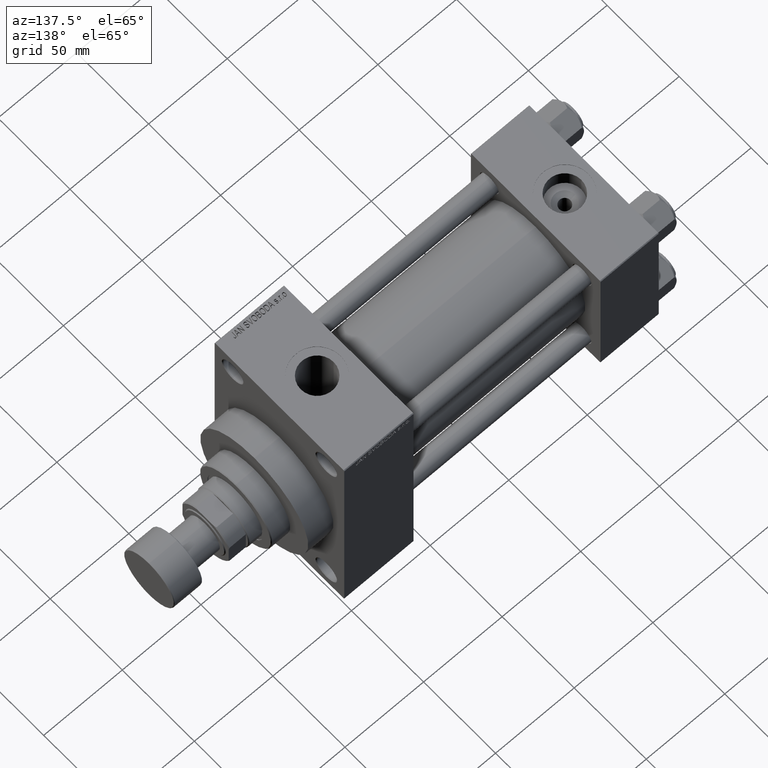
[diagram: clean part render]
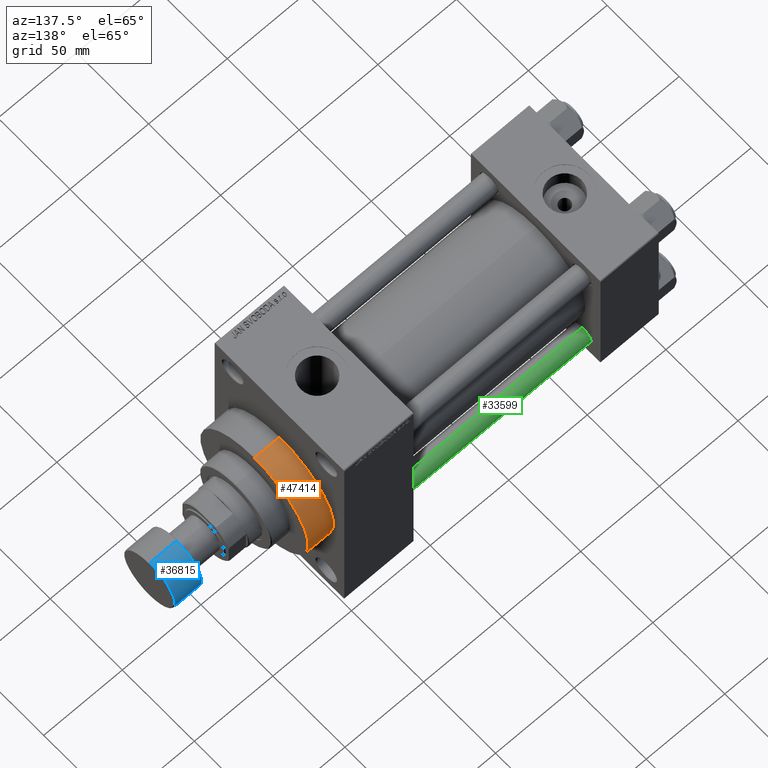
[diagram: same view with three faces highlighted in distinct colors, each labeled with its STEP entity id]
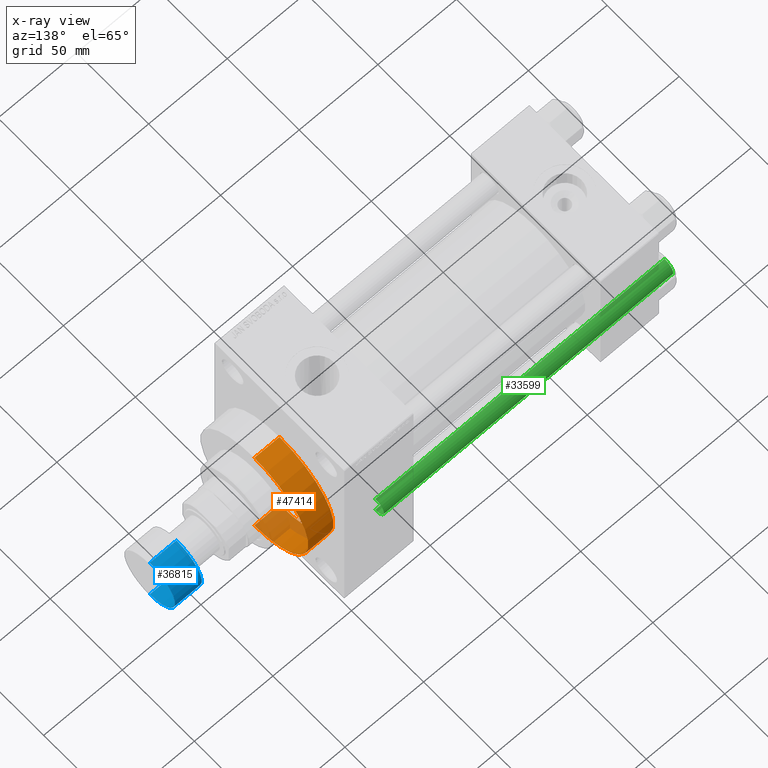
[diagram: x-ray of the same camera — body ghosted, the three highlighted faces saturated]
A machine part, auxiliary view with three faces highlighted in distinct colors.
The next image is the same camera in x-ray (body ghosted, the three faces saturated) — at least one of them is partly hidden behind the body in this view.
Their STEP definitions:

[orange] entity #47414 — the highlighted cylindrical surface (partial cylindrical patch) has radius 37.5 mm, axis along (-1, -0, -0).
#252 = AXIS2_PLACEMENT_3D ( 'NONE', #37824, #4315, #11303 ) ;
#1398 = CARTESIAN_POINT ( 'NONE',  ( 216.0000000000000284, 4.592425496802575156E-15, -37.50000000000000711 ) ) ;
#2945 = ORIENTED_EDGE ( 'NONE', *, *, #4268, .T. ) ;
#4268 = EDGE_CURVE ( 'NONE', #22805, #17750, #21026, .T. ) ;
#4315 = DIRECTION ( 'NONE',  ( 1.000000000000000000, 0.000000000000000000, 0.000000000000000000 ) ) ;
#7469 = ORIENTED_EDGE ( 'NONE', *, *, #20431, .F. ) ;
#8752 = VERTEX_POINT ( 'NONE', #31123 ) ;
#9662 = CARTESIAN_POINT ( 'NONE',  ( 216.0000000000000284, 0.000000000000000000, 0.000000000000000000 ) ) ;
#10788 = CARTESIAN_POINT ( 'NONE',  ( 216.0000000000000284, 0.000000000000000000, 37.50000000000000711 ) ) ;
#11303 = DIRECTION ( 'NONE',  ( 0.000000000000000000, 0.000000000000000000, -1.000000000000000000 ) ) ;
#13040 = CYLINDRICAL_SURFACE ( 'NONE', #19787, 37.50000000000000711 ) ;
#14888 = LINE ( 'NONE', #36860, #23101 ) ;
#17750 = VERTEX_POINT ( 'NONE', #26989 ) ;
#18622 = DIRECTION ( 'NONE',  ( 0.000000000000000000, 0.000000000000000000, -1.000000000000000000 ) ) ;
#19787 = AXIS2_PLACEMENT_3D ( 'NONE', #9662, #42702, #46555 ) ;
#20431 = EDGE_CURVE ( 'NONE', #8752, #17750, #32503, .T. ) ;
#20750 = EDGE_CURVE ( 'NONE', #24693, #8752, #22901, .T. ) ;
#21026 = CIRCLE ( 'NONE', #252, 37.50000000000000711 ) ;
#22805 = VERTEX_POINT ( 'NONE', #32153 ) ;
#22901 = CIRCLE ( 'NONE', #36028, 37.50000000000000711 ) ;
#23101 = VECTOR ( 'NONE', #44305, 1000.000000000000000 ) ;
#24693 = VERTEX_POINT ( 'NONE', #1398 ) ;
#26104 = DIRECTION ( 'NONE',  ( 1.000000000000000000, 0.000000000000000000, 0.000000000000000000 ) ) ;
#26897 = EDGE_CURVE ( 'NONE', #24693, #22805, #14888, .T. ) ;
#26989 = CARTESIAN_POINT ( 'NONE',  ( 200.0000000000000000, 0.000000000000000000, 37.50000000000000711 ) ) ;
#29963 = ORIENTED_EDGE ( 'NONE', *, *, #20750, .F. ) ;
#31123 = CARTESIAN_POINT ( 'NONE',  ( 216.0000000000000284, 0.000000000000000000, 37.50000000000000711 ) ) ;
#32153 = CARTESIAN_POINT ( 'NONE',  ( 200.0000000000000000, 4.592425496802575156E-15, -37.50000000000000711 ) ) ;
#32391 = CARTESIAN_POINT ( 'NONE',  ( 216.0000000000000284, 0.000000000000000000, 0.000000000000000000 ) ) ;
#32503 = LINE ( 'NONE', #10788, #45987 ) ;
#32748 = DIRECTION ( 'NONE',  ( -1.000000000000000000, -0.000000000000000000, -0.000000000000000000 ) ) ;
#35698 = ORIENTED_EDGE ( 'NONE', *, *, #26897, .T. ) ;
#36028 = AXIS2_PLACEMENT_3D ( 'NONE', #32391, #26104, #18622 ) ;
#36860 = CARTESIAN_POINT ( 'NONE',  ( 216.0000000000000284, 4.592425496802575156E-15, -37.50000000000000711 ) ) ;
#37824 = CARTESIAN_POINT ( 'NONE',  ( 200.0000000000000000, 0.000000000000000000, 0.000000000000000000 ) ) ;
#38630 = FACE_OUTER_BOUND ( 'NONE', #44712, .T. ) ;
#42702 = DIRECTION ( 'NONE',  ( -1.000000000000000000, -0.000000000000000000, -0.000000000000000000 ) ) ;
#44305 = DIRECTION ( 'NONE',  ( -1.000000000000000000, -0.000000000000000000, -0.000000000000000000 ) ) ;
#44712 = EDGE_LOOP ( 'NONE', ( #29963, #35698, #2945, #7469 ) ) ;
#45987 = VECTOR ( 'NONE', #32748, 1000.000000000000000 ) ;
#46555 = DIRECTION ( 'NONE',  ( 0.000000000000000000, 0.000000000000000000, 1.000000000000000000 ) ) ;
#47414 = ADVANCED_FACE ( 'NONE', ( #38630 ), #13040, .T. ) ;

[blue] entity #36815 — the highlighted cylindrical surface (partial cylindrical patch) has radius 17.5 mm, axis along (1, 0, 0).
#15 = DIRECTION ( 'NONE',  ( 1.000000000000000000, 0.000000000000000000, 0.000000000000000000 ) ) ;
#780 = DIRECTION ( 'NONE',  ( 0.000000000000000000, 0.000000000000000000, 1.000000000000000000 ) ) ;
#2944 = DIRECTION ( 'NONE',  ( 1.000000000000000000, 0.000000000000000000, 0.000000000000000000 ) ) ;
#5590 = DIRECTION ( 'NONE',  ( 1.000000000000000000, 0.000000000000000000, 0.000000000000000000 ) ) ;
#5634 = CARTESIAN_POINT ( 'NONE',  ( -17.50000000000000355, 2.143131898507868643E-15, -17.49999999999999645 ) ) ;
#7796 = ORIENTED_EDGE ( 'NONE', *, *, #13488, .T. ) ;
#9564 = CIRCLE ( 'NONE', #33430, 17.50000000000000355 ) ;
#10162 = CARTESIAN_POINT ( 'NONE',  ( 0.000000000000000000, 0.000000000000000000, -17.49999999999999645 ) ) ;
#10995 = DIRECTION ( 'NONE',  ( 0.000000000000000000, 0.000000000000000000, 1.000000000000000000 ) ) ;
#12267 = VERTEX_POINT ( 'NONE', #20074 ) ;
#13055 = ORIENTED_EDGE ( 'NONE', *, *, #40128, .T. ) ;
#13488 = EDGE_CURVE ( 'NONE', #12267, #18592, #26655, .T. ) ;
#14748 = CARTESIAN_POINT ( 'NONE',  ( 17.50000000000000355, 0.000000000000000000, -18.00000000000000000 ) ) ;
#17557 = VECTOR ( 'NONE', #780, 1000.000000000000000 ) ;
#18592 = VERTEX_POINT ( 'NONE', #31239 ) ;
#20074 = CARTESIAN_POINT ( 'NONE',  ( -17.50000000000000355, 2.143131898507868643E-15, -0.5000000000000004441 ) ) ;
#20709 = VERTEX_POINT ( 'NONE', #5634 ) ;
#22040 = EDGE_CURVE ( 'NONE', #29432, #18592, #33813, .T. ) ;
#23723 = CARTESIAN_POINT ( 'NONE',  ( 17.50000000000000355, 0.000000000000000000, -17.49999999999999645 ) ) ;
#23832 = EDGE_LOOP ( 'NONE', ( #13055, #33660, #7796, #37375 ) ) ;
#23914 = CARTESIAN_POINT ( 'NONE',  ( 0.000000000000000000, 0.000000000000000000, -0.5000000000000004441 ) ) ;
#24372 = CYLINDRICAL_SURFACE ( 'NONE', #33294, 17.50000000000000355 ) ;
#26655 = CIRCLE ( 'NONE', #45103, 17.50000000000000355 ) ;
#27989 = FACE_OUTER_BOUND ( 'NONE', #23832, .T. ) ;
#29432 = VERTEX_POINT ( 'NONE', #23723 ) ;
#31239 = CARTESIAN_POINT ( 'NONE',  ( 17.50000000000000355, 0.000000000000000000, -0.5000000000000004441 ) ) ;
#33294 = AXIS2_PLACEMENT_3D ( 'NONE', #39101, #37144, #15 ) ;
#33430 = AXIS2_PLACEMENT_3D ( 'NONE', #10162, #39365, #2944 ) ;
#33660 = ORIENTED_EDGE ( 'NONE', *, *, #41843, .T. ) ;
#33813 = LINE ( 'NONE', #14748, #17557 ) ;
#35812 = VECTOR ( 'NONE', #10995, 1000.000000000000000 ) ;
#35872 = CARTESIAN_POINT ( 'NONE',  ( -17.50000000000000355, 2.143131898507868643E-15, -18.00000000000000000 ) ) ;
#36815 = ADVANCED_FACE ( 'NONE', ( #27989 ), #24372, .T. ) ;
#37144 = DIRECTION ( 'NONE',  ( 0.000000000000000000, 0.000000000000000000, 1.000000000000000000 ) ) ;
#37375 = ORIENTED_EDGE ( 'NONE', *, *, #22040, .F. ) ;
#38645 = DIRECTION ( 'NONE',  ( -0.000000000000000000, -0.000000000000000000, -1.000000000000000000 ) ) ;
#39101 = CARTESIAN_POINT ( 'NONE',  ( 0.000000000000000000, 0.000000000000000000, -18.00000000000000000 ) ) ;
#39365 = DIRECTION ( 'NONE',  ( 0.000000000000000000, 0.000000000000000000, 1.000000000000000000 ) ) ;
#40128 = EDGE_CURVE ( 'NONE', #29432, #20709, #9564, .T. ) ;
#41843 = EDGE_CURVE ( 'NONE', #20709, #12267, #44030, .T. ) ;
#44030 = LINE ( 'NONE', #35872, #35812 ) ;
#45103 = AXIS2_PLACEMENT_3D ( 'NONE', #23914, #38645, #5590 ) ;

[green] entity #33599 — the highlighted cylindrical surface (edge-blend (fillet) strip) has radius 6 mm, axis along (-1, -0, 0).
#1208 = DIRECTION ( 'NONE',  ( 0.000000000000000000, 0.000000000000000000, -1.000000000000000000 ) ) ;
#1683 = CARTESIAN_POINT ( 'NONE',  ( 0.000000000000000000, 0.000000000000000000, 184.5000000000000000 ) ) ;
#3459 = CIRCLE ( 'NONE', #38890, 6.000000000000000888 ) ;
#5196 = ORIENTED_EDGE ( 'NONE', *, *, #39374, .T. ) ;
#5282 = CARTESIAN_POINT ( 'NONE',  ( 6.000000000000000888, 7.347880794884120722E-16, 0.5000000000000281997 ) ) ;
#6947 = DIRECTION ( 'NONE',  ( -0.000000000000000000, -0.000000000000000000, -1.000000000000000000 ) ) ;
#11290 = DIRECTION ( 'NONE',  ( -0.000000000000000000, -0.000000000000000000, 1.000000000000000000 ) ) ;
#14272 = CARTESIAN_POINT ( 'NONE',  ( 0.000000000000000000, 0.000000000000000000, 185.0000000000000000 ) ) ;
#14350 = VECTOR ( 'NONE', #30979, 1000.000000000000000 ) ;
#14516 = DIRECTION ( 'NONE',  ( -0.000000000000000000, -0.000000000000000000, -1.000000000000000000 ) ) ;
#14537 = EDGE_CURVE ( 'NONE', #24407, #29141, #16267, .T. ) ;
#16267 = LINE ( 'NONE', #41126, #14350 ) ;
#17334 = CARTESIAN_POINT ( 'NONE',  ( -6.000000000000000888, 0.000000000000000000, 184.5000000000000000 ) ) ;
#17656 = CYLINDRICAL_SURFACE ( 'NONE', #37085, 6.000000000000000888 ) ;
#17815 = CIRCLE ( 'NONE', #19276, 6.000000000000000888 ) ;
#18170 = ORIENTED_EDGE ( 'NONE', *, *, #14537, .F. ) ;
#19276 = AXIS2_PLACEMENT_3D ( 'NONE', #1683, #1208, #27473 ) ;
#20395 = VERTEX_POINT ( 'NONE', #5282 ) ;
#21798 = ORIENTED_EDGE ( 'NONE', *, *, #31017, .T. ) ;
#23986 = VERTEX_POINT ( 'NONE', #24390 ) ;
#24390 = CARTESIAN_POINT ( 'NONE',  ( 6.000000000000000888, 7.347880794884120722E-16, 184.5000000000000000 ) ) ;
#24407 = VERTEX_POINT ( 'NONE', #17334 ) ;
#24599 = EDGE_CURVE ( 'NONE', #23986, #20395, #43371, .T. ) ;
#25885 = CARTESIAN_POINT ( 'NONE',  ( -6.000000000000000888, 0.000000000000000000, 0.5000000000000281997 ) ) ;
#27473 = DIRECTION ( 'NONE',  ( 1.000000000000000000, 0.000000000000000000, 0.000000000000000000 ) ) ;
#29141 = VERTEX_POINT ( 'NONE', #25885 ) ;
#29857 = DIRECTION ( 'NONE',  ( 1.000000000000000000, 0.000000000000000000, 0.000000000000000000 ) ) ;
#30979 = DIRECTION ( 'NONE',  ( -0.000000000000000000, -0.000000000000000000, -1.000000000000000000 ) ) ;
#31017 = EDGE_CURVE ( 'NONE', #24407, #23986, #17815, .T. ) ;
#32382 = DIRECTION ( 'NONE',  ( -1.000000000000000000, 0.000000000000000000, 0.000000000000000000 ) ) ;
#33599 = ADVANCED_FACE ( 'NONE', ( #40094 ), #17656, .T. ) ;
#37085 = AXIS2_PLACEMENT_3D ( 'NONE', #14272, #14516, #32382 ) ;
#38052 = EDGE_LOOP ( 'NONE', ( #21798, #43818, #5196, #18170 ) ) ;
#38890 = AXIS2_PLACEMENT_3D ( 'NONE', #47708, #11290, #29857 ) ;
#39374 = EDGE_CURVE ( 'NONE', #20395, #29141, #3459, .T. ) ;
#40094 = FACE_OUTER_BOUND ( 'NONE', #38052, .T. ) ;
#41126 = CARTESIAN_POINT ( 'NONE',  ( -6.000000000000000888, 0.000000000000000000, 185.0000000000000000 ) ) ;
#43371 = LINE ( 'NONE', #44319, #46890 ) ;
#43818 = ORIENTED_EDGE ( 'NONE', *, *, #24599, .T. ) ;
#44319 = CARTESIAN_POINT ( 'NONE',  ( 6.000000000000000888, 7.347880794884120722E-16, 185.0000000000000000 ) ) ;
#46890 = VECTOR ( 'NONE', #6947, 1000.000000000000000 ) ;
#47708 = CARTESIAN_POINT ( 'NONE',  ( 0.000000000000000000, 0.000000000000000000, 0.5000000000000281997 ) ) ;